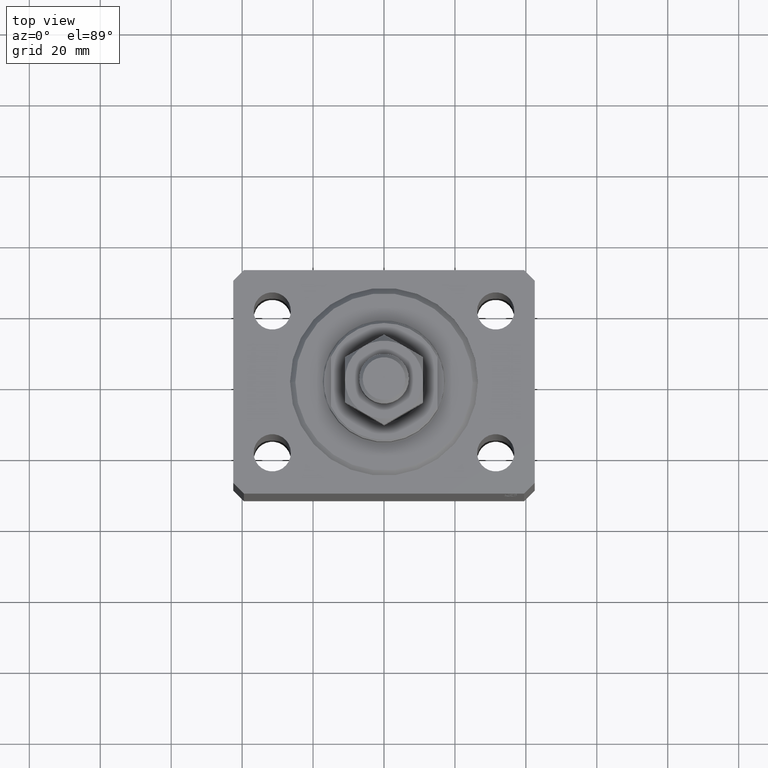
[diagram: clean part render]
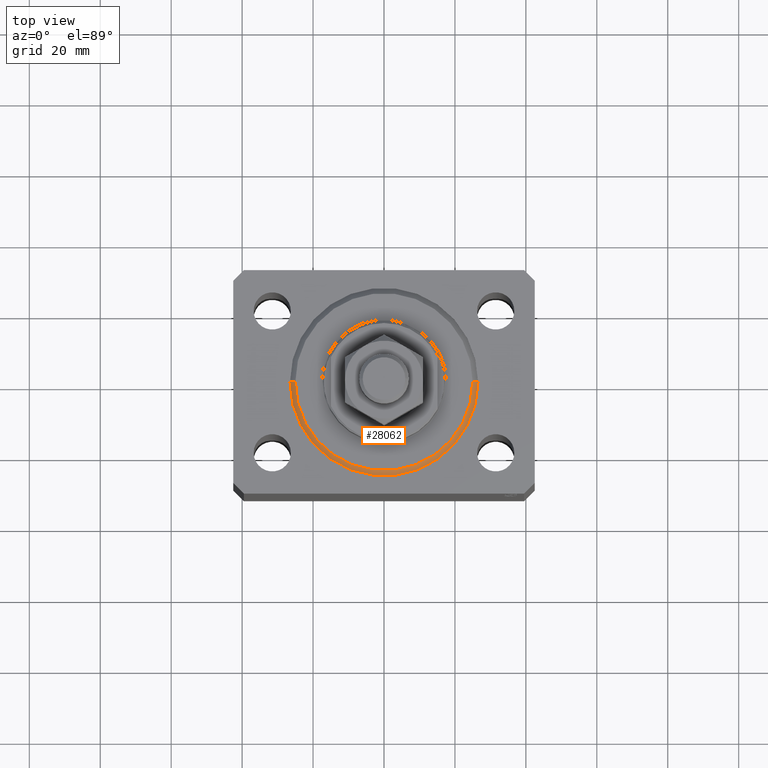
[diagram: same view with one face highlighted and labeled with its STEP entity id]
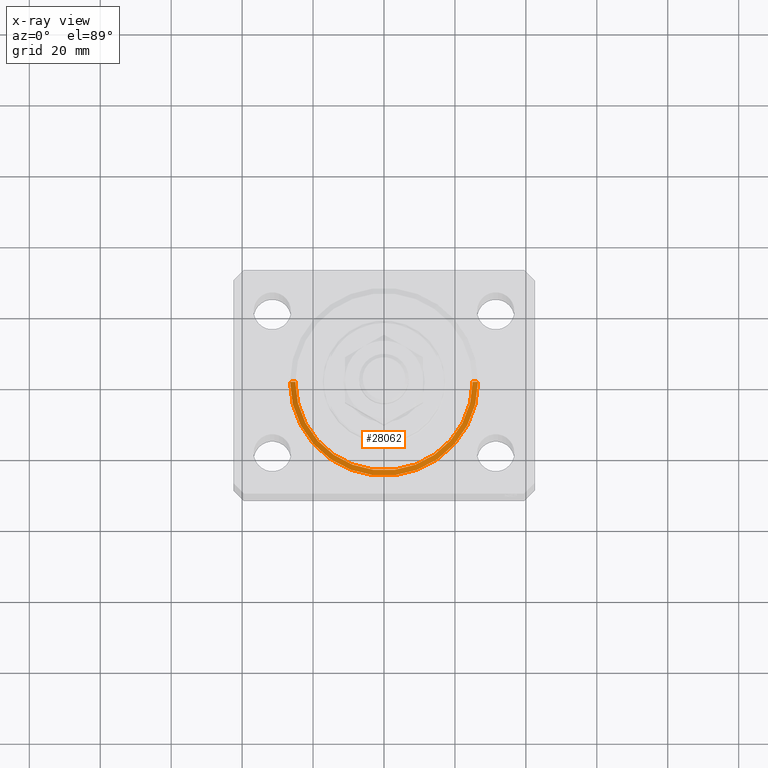
[diagram: x-ray of the same camera — body ghosted, the highlighted face saturated]
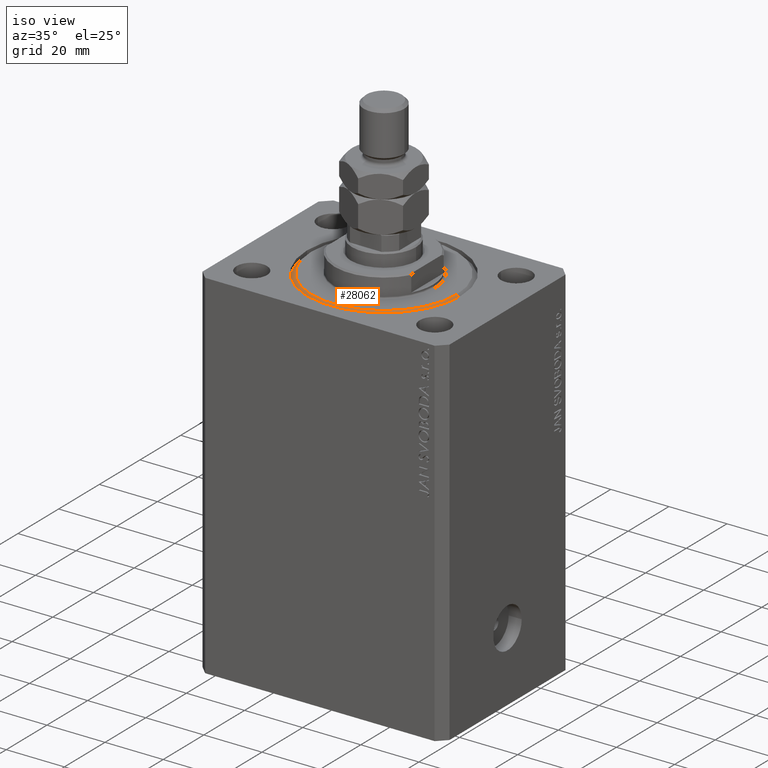
[diagram: same view with one face highlighted and labeled with its STEP entity id]
A machine part, top view. The second image highlights one B-rep face of the part: STEP entity #28062.
The next image is the same camera in x-ray: the body ghosted, the highlighted face saturated — about 0% of this face is hidden behind the body in this view.
A second angle (iso view) of the same face is appended — the face is thin or edge-on in the first view.
In plain terms, the highlighted conical surface has half-angle 45 deg.
Its self-contained STEP definition (entity closure, byte-faithful):
#3918 = VERTEX_POINT ( 'NONE', #8279 ) ;
#4084 = CARTESIAN_POINT ( 'NONE',  ( -26.50000000000000355, 0.000000000000000000, 1.500000000000018652 ) ) ;
#5432 = EDGE_CURVE ( 'NONE', #30214, #3918, #35048, .T. ) ;
#5818 = ORIENTED_EDGE ( 'NONE', *, *, #36602, .F. ) ;
#5954 = LINE ( 'NONE', #16951, #9995 ) ;
#6630 = CARTESIAN_POINT ( 'NONE',  ( 0.000000000000000000, 0.000000000000000000, 1.500000000000018652 ) ) ;
#8185 = CARTESIAN_POINT ( 'NONE',  ( 24.99999999999998224, 0.000000000000000000, 0.000000000000000000 ) ) ;
#8279 = CARTESIAN_POINT ( 'NONE',  ( -24.99999999999998224, 3.153465507804433615E-15, 0.000000000000000000 ) ) ;
#9474 = VERTEX_POINT ( 'NONE', #4084 ) ;
#9995 = VECTOR ( 'NONE', #17393, 1000.000000000000000 ) ;
#11989 = DIRECTION ( 'NONE',  ( 1.000000000000000000, 0.000000000000000000, 0.000000000000000000 ) ) ;
#12404 = VECTOR ( 'NONE', #36297, 1000.000000000000000 ) ;
#13628 = EDGE_CURVE ( 'NONE', #30214, #19728, #5954, .T. ) ;
#16799 = DIRECTION ( 'NONE',  ( -0.000000000000000000, -0.000000000000000000, -1.000000000000000000 ) ) ;
#16951 = CARTESIAN_POINT ( 'NONE',  ( 26.50000000000000355, 0.000000000000000000, 1.500000000000018652 ) ) ;
#17393 = DIRECTION ( 'NONE',  ( 0.7071067811865483499, 0.000000000000000000, 0.7071067811865466846 ) ) ;
#19668 = CARTESIAN_POINT ( 'NONE',  ( 0.000000000000000000, 0.000000000000000000, 1.500000000000018652 ) ) ;
#19728 = VERTEX_POINT ( 'NONE', #27792 ) ;
#20533 = ORIENTED_EDGE ( 'NONE', *, *, #5432, .F. ) ;
#20657 = FACE_OUTER_BOUND ( 'NONE', #40068, .T. ) ;
#20873 = DIRECTION ( 'NONE',  ( 1.000000000000000000, 0.000000000000000000, 0.000000000000000000 ) ) ;
#22693 = ORIENTED_EDGE ( 'NONE', *, *, #29225, .F. ) ;
#23333 = CARTESIAN_POINT ( 'NONE',  ( 0.000000000000000000, 0.000000000000000000, 0.000000000000000000 ) ) ;
#23808 = CIRCLE ( 'NONE', #43199, 26.50000000000000355 ) ;
#26086 = AXIS2_PLACEMENT_3D ( 'NONE', #23333, #16799, #45278 ) ;
#26791 = ORIENTED_EDGE ( 'NONE', *, *, #13628, .T. ) ;
#27792 = CARTESIAN_POINT ( 'NONE',  ( 26.50000000000000355, 3.245314017740486554E-15, 1.500000000000018652 ) ) ;
#28062 = ADVANCED_FACE ( 'NONE', ( #20657 ), #36371, .T. ) ;
#29225 = EDGE_CURVE ( 'NONE', #9474, #19728, #23808, .T. ) ;
#30214 = VERTEX_POINT ( 'NONE', #8185 ) ;
#34155 = DIRECTION ( 'NONE',  ( -0.000000000000000000, -0.000000000000000000, 1.000000000000000000 ) ) ;
#34902 = DIRECTION ( 'NONE',  ( -0.000000000000000000, -0.000000000000000000, 1.000000000000000000 ) ) ;
#35048 = CIRCLE ( 'NONE', #26086, 24.99999999999998224 ) ;
#36297 = DIRECTION ( 'NONE',  ( -0.7071067811865483499, 8.659560562354942719E-17, 0.7071067811865466846 ) ) ;
#36371 = CONICAL_SURFACE ( 'NONE', #43053, 26.50000000000000355, 0.7853981633974495002 ) ;
#36602 = EDGE_CURVE ( 'NONE', #3918, #9474, #39779, .T. ) ;
#39779 = LINE ( 'NONE', #43515, #12404 ) ;
#40068 = EDGE_LOOP ( 'NONE', ( #5818, #20533, #26791, #22693 ) ) ;
#43053 = AXIS2_PLACEMENT_3D ( 'NONE', #6630, #34902, #20873 ) ;
#43199 = AXIS2_PLACEMENT_3D ( 'NONE', #19668, #34155, #11989 ) ;
#43515 = CARTESIAN_POINT ( 'NONE',  ( -26.50000000000000355, 3.245314017740486554E-15, 1.500000000000018652 ) ) ;
#45278 = DIRECTION ( 'NONE',  ( 1.000000000000000000, 0.000000000000000000, 0.000000000000000000 ) ) ;